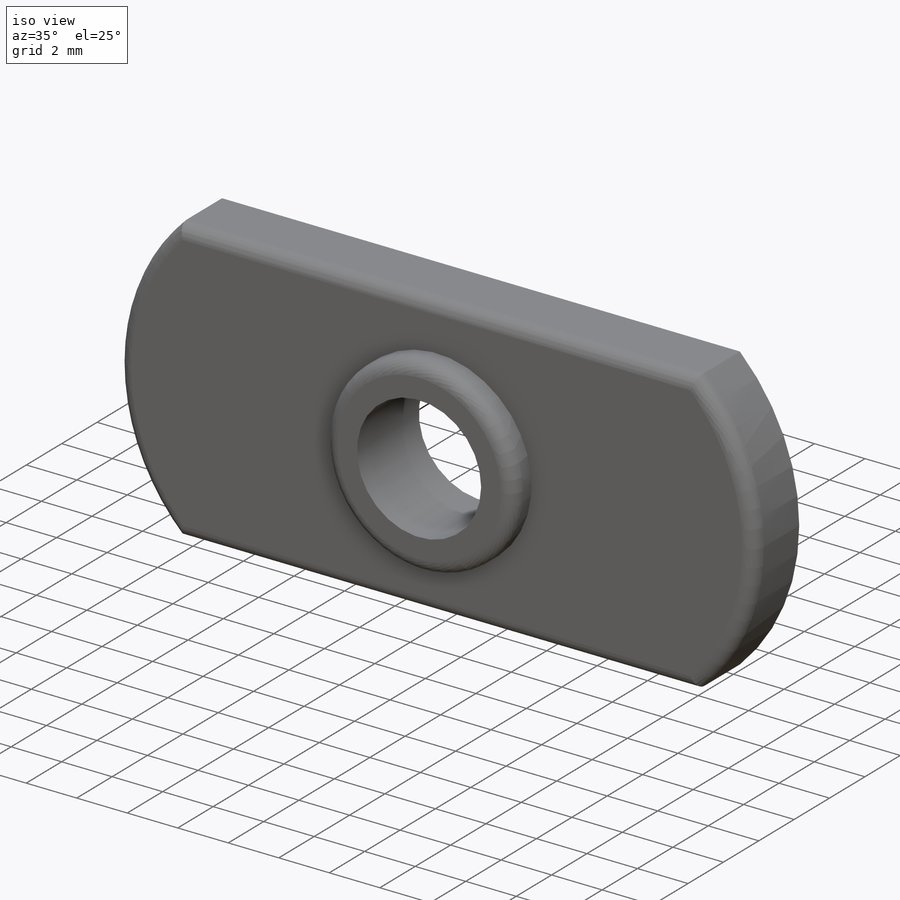
[diagram: iso view]
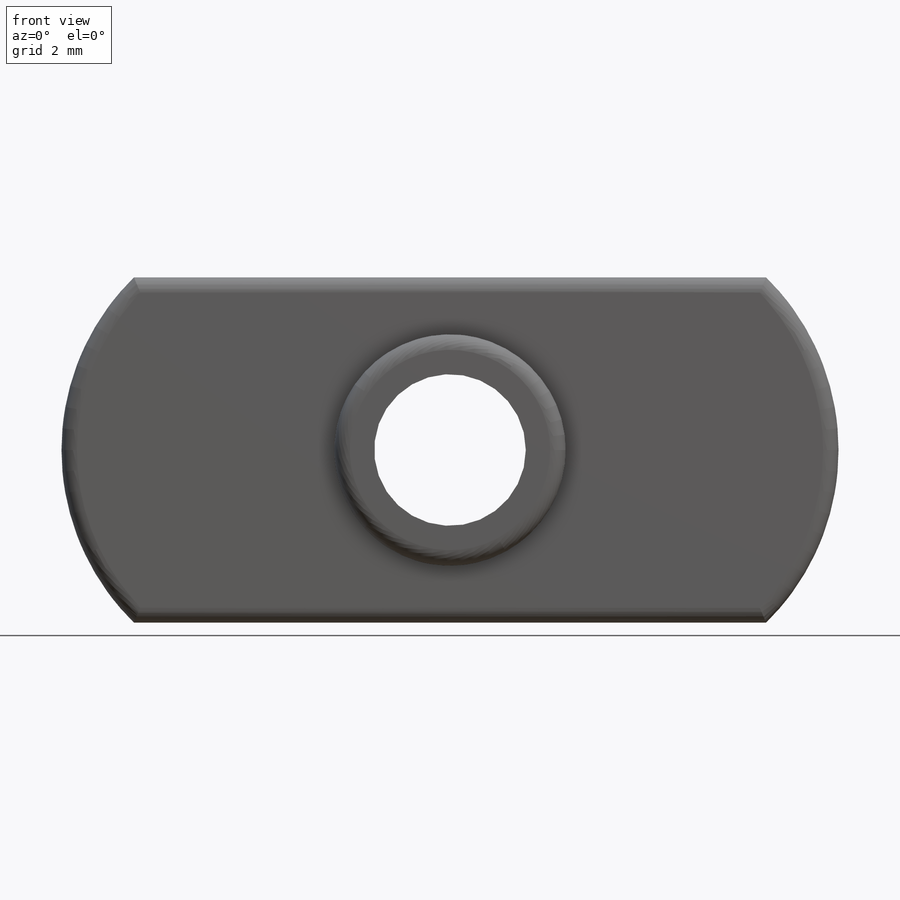
[diagram: front view]
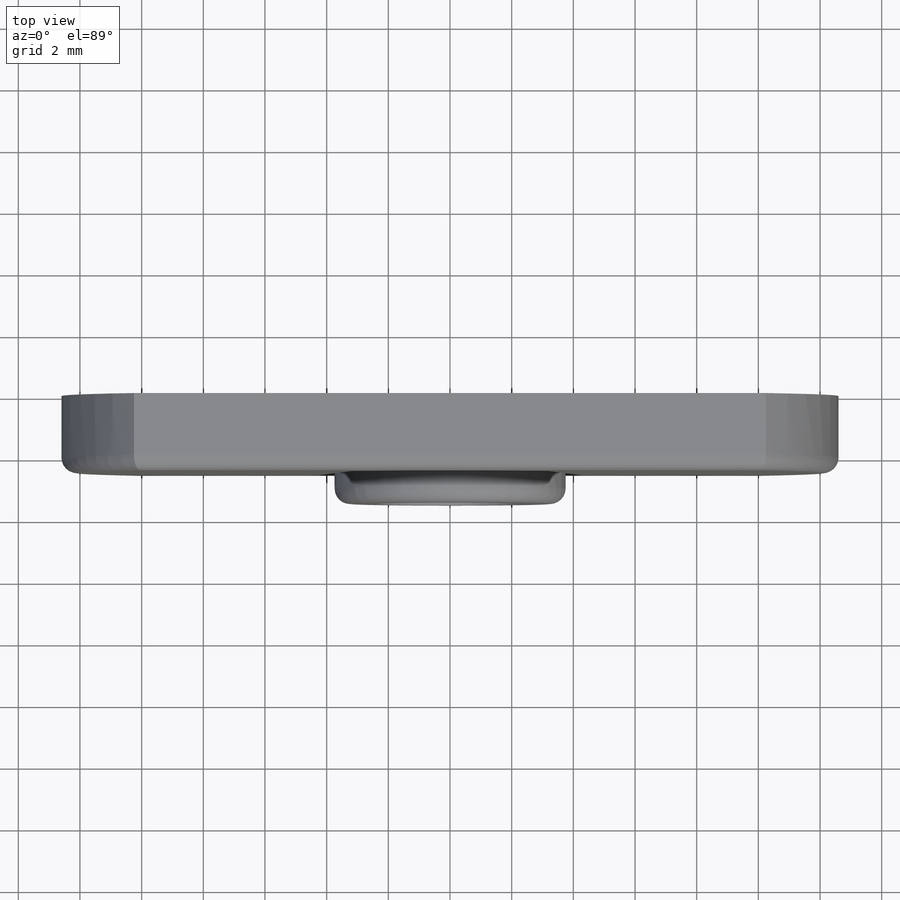
[diagram: top view]
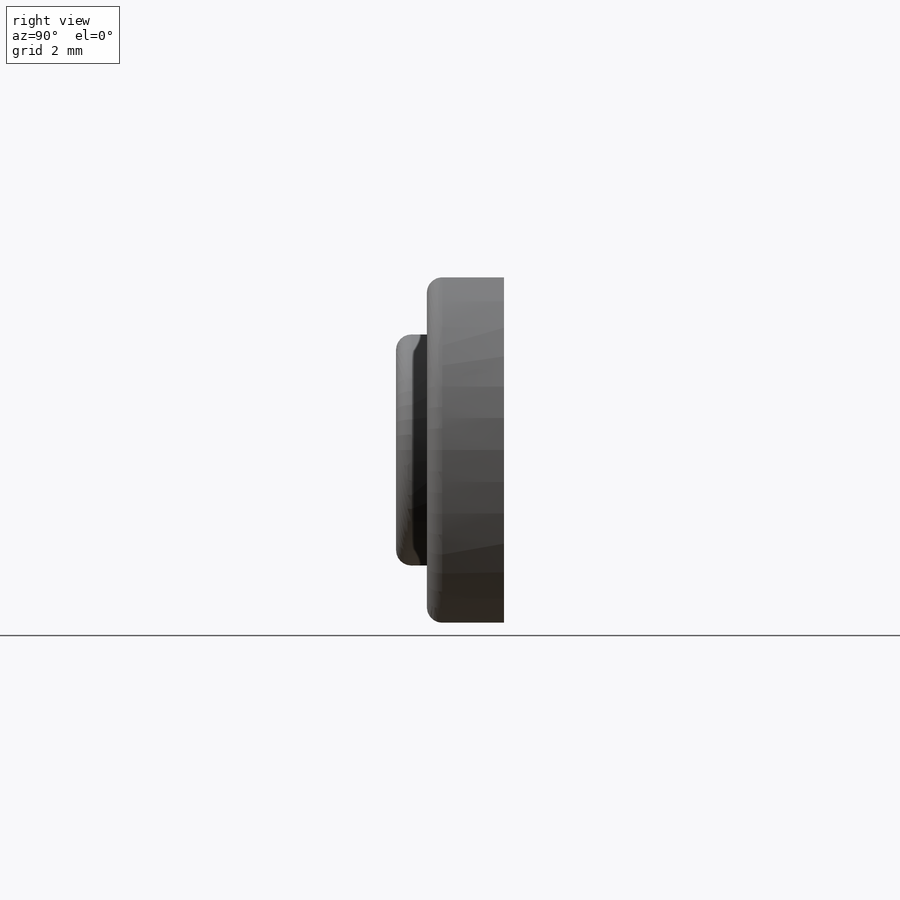
[diagram: right view]
SOLIDWORKS PART (.sldprt)
format: sldprt  version: not decoded by parser v0  size: 187,904 bytes
history: native  units: mm
features: sketch x4, extrude x2, material x1, plane x1, hole x1, thread x1, fillet x1 (+12 scaffold rows collapsed; 3 parser-record rows omitted)
feature tree (26):
  scaffold x12  (default folders/planes/origin — collapsed)
  material  "Chrome Stainless Steel"
  plane  "Plane1"
  sketch  "Sketch1"
  parser-record x3  (decoder bookkeeping rows leaked as tree rows — omitted from the tree; the rows remain in map.json)
  extrude  "Extrusion1"  Depth=2.5mm
  sketch  "Sketch2"
  extrude  "Extrusion2"  Depth=1mm
  hole  "Hole1"  Diameter=4.917mm Depth=3.5mm
  sketch  "Sketch4"
  sketch  "Sketch3"  dims[Diameter=4.917mm Depth=3.5mm]
  thread  "Cosmetic Thread1"  Diameter=3.5mm  [1 undecoded]
  fillet  "Fillet1"  Radius=0.5mm
decode coverage: 6 of 9 modeling features carry decoded parameters
note: 1 parameter value undecoded
note: suppression state not decoded; provenance and decode notes live in map.json
